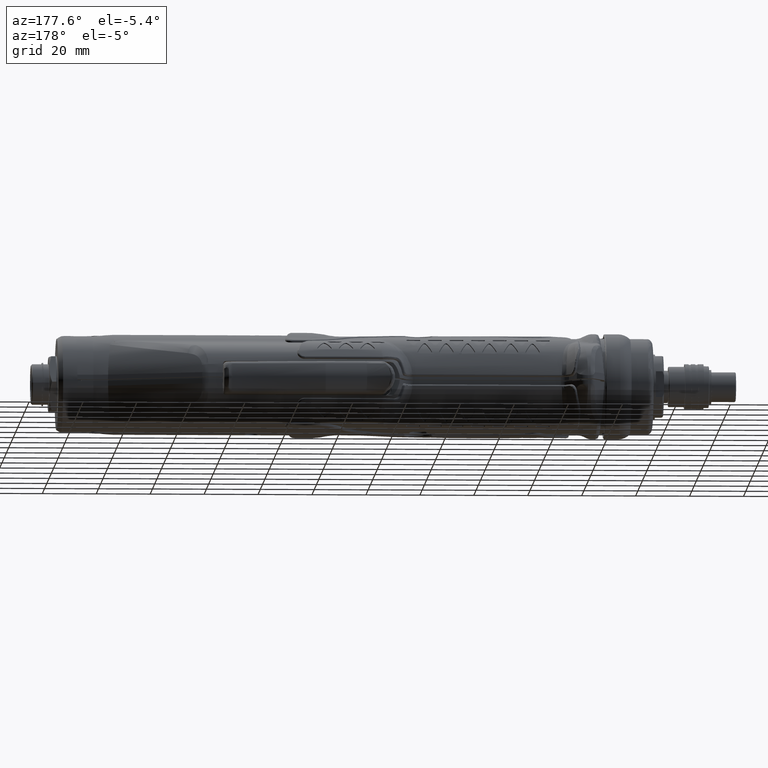
[diagram: clean part render]
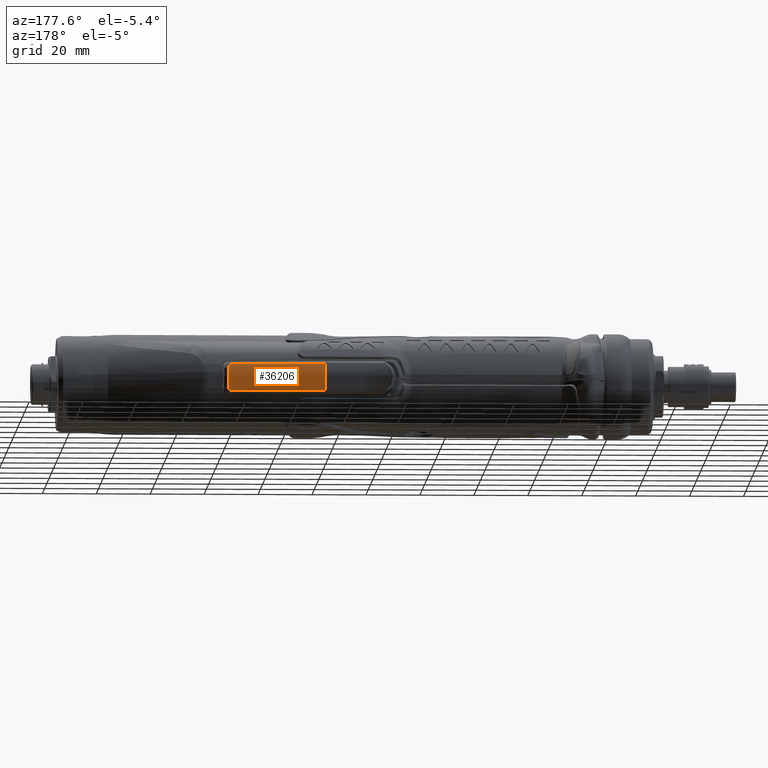
[diagram: same view with one face highlighted and labeled with its STEP entity id]
A machine part, auxiliary view. The second image highlights one B-rep face of the part: STEP entity #36206.
In plain terms, the highlighted face is a freeform B-spline surface patch.
Its self-contained STEP definition (entity closure, byte-faithful):
#151=(
BOUNDED_SURFACE()
B_SPLINE_SURFACE(1,2,((#54221,#54222,#54223),(#54224,#54225,#54226)),
 .UNSPECIFIED.,.F.,.F.,.F.)
B_SPLINE_SURFACE_WITH_KNOTS((2,2),(3,3),(-0.0453292621609347,3.55302366492364),
(-2.09415412057091,-1.04743853301884),.UNSPECIFIED.)
GEOMETRIC_REPRESENTATION_ITEM()
RATIONAL_B_SPLINE_SURFACE(((1.,0.866145869548388,1.),(1.,0.866145869548388,
1.)))
REPRESENTATION_ITEM('')
SURFACE()
);
#1243=LINE('',#54030,#3157);
#1245=LINE('',#54194,#3159);
#3157=VECTOR('',#42515,10.);
#3159=VECTOR('',#42523,10.);
#4963=ELLIPSE('',#38642,10.,9.98725868867346);
#6462=FACE_OUTER_BOUND('',#8752,.T.);
#8752=EDGE_LOOP('',(#24645,#24646,#24647,#24648,#24649,#24650,#24651,#24652));
#12206=B_SPLINE_CURVE_WITH_KNOTS('',3,(#51195,#51196,#51197,#51198,#51199,
#51200,#51201,#51202,#51203,#51204,#51205,#51206,#51207,#51208,#51209,#51210,
#51211,#51212,#51213,#51214,#51215,#51216,#51217,#51218,#51219,#51220,#51221,
#51222,#51223,#51224,#51225,#51226,#51227,#51228,#51229,#51230,#51231,#51232,
#51233,#51234,#51235,#51236,#51237,#51238,#51239,#51240,#51241,#51242,#51243),
 .UNSPECIFIED.,.F.,.F.,(4,3,3,3,3,3,3,3,3,3,3,3,3,3,3,3,4),(0.499999999999998,
0.562499999999998,0.597236248551928,0.62881524805123,0.665690674343951,
0.702712483375849,0.750812282830627,0.786521075922885,0.818377996499074,
0.849304090389232,0.872266035620495,0.904199526715371,0.923607106702099,
0.94160622217413,0.970803111087065,0.985691755565195,1.),.UNSPECIFIED.);
#12217=B_SPLINE_CURVE_WITH_KNOTS('',3,(#51940,#51941,#51942,#51943,#51944,
#51945,#51946,#51947,#51948,#51949,#51950,#51951,#51952,#51953,#51954,#51955,
#51956,#51957,#51958,#51959,#51960,#51961,#51962,#51963,#51964,#51965,#51966,
#51967,#51968,#51969,#51970,#51971,#51972,#51973,#51974,#51975,#51976,#51977,
#51978,#51979,#51980,#51981,#51982,#51983,#51984,#51985,#51986,#51987,#51988,
#51989,#51990,#51991),.UNSPECIFIED.,.F.,.F.,(4,3,3,3,3,3,3,3,3,3,3,3,3,
3,3,3,3,4),(0.500000000000004,0.550578422519174,0.588145168306505,0.6202965514392,
0.651104091523619,0.68506737455082,0.726100845386711,0.767671418164394,
0.801767239120379,0.832747018876416,0.862229567089636,0.883613442341954,
0.909695202025383,0.928743865505182,0.945339604914059,0.97266980245703,
0.987249744485877,1.),.UNSPECIFIED.);
#12290=B_SPLINE_CURVE_WITH_KNOTS('',3,(#53976,#53977,#53978,#53979,#53980,
#53981,#53982,#53983,#53984,#53985,#53986,#53987,#53988,#53989,#53990,#53991,
#53992,#53993,#53994,#53995,#53996,#53997,#53998,#53999,#54000,#54001,#54002,
#54003,#54004,#54005,#54006,#54007,#54008,#54009,#54010,#54011,#54012,#54013,
#54014,#54015,#54016,#54017,#54018,#54019,#54020,#54021,#54022,#54023,#54024),
 .UNSPECIFIED.,.F.,.F.,(4,3,3,3,3,3,3,3,3,3,3,3,3,3,3,3,4),(0.,0.0229135858401004,
0.0470739051573818,0.0730220266274505,0.102340045201647,0.145580390825562,
0.175972375357903,0.202512213665035,0.234728999624119,0.26367958225275,
0.295980876332555,0.341125040062068,0.380843780046552,0.412249464842345,
0.450273364834418,0.483852267458528,0.500000000000004),.UNSPECIFIED.);
#12291=B_SPLINE_CURVE_WITH_KNOTS('',3,(#54108,#54109,#54110,#54111,#54112,
#54113,#54114,#54115,#54116,#54117,#54118,#54119,#54120,#54121,#54122,#54123,
#54124,#54125,#54126,#54127,#54128,#54129,#54130,#54131,#54132,#54133,#54134,
#54135,#54136,#54137,#54138,#54139,#54140,#54141,#54142,#54143,#54144,#54145,
#54146,#54147,#54148,#54149,#54150,#54151,#54152,#54153,#54154,#54155,#54156),
 .UNSPECIFIED.,.F.,.F.,(4,3,3,3,3,3,3,3,3,3,3,3,3,3,3,3,4),(0.,0.0228230527923689,
0.0469022443340675,0.0727902384870115,0.102128654125631,0.145884587921874,
0.175727214059688,0.202263047992187,0.232651154670007,0.261566167012325,
0.293878001066031,0.339620698440464,0.376926095446381,0.408843166927783,
0.445349367525567,0.479245226609468,0.499999999999998),.UNSPECIFIED.);
#12293=B_SPLINE_CURVE_WITH_KNOTS('',3,(#54187,#54188,#54189,#54190,#54191),
 .UNSPECIFIED.,.F.,.F.,(4,1,4),(1.13882274706744,1.48556004070079,1.7456130109258),
 .UNSPECIFIED.);
#14290=VERTEX_POINT('',#51187);
#14291=VERTEX_POINT('',#51194);
#14302=VERTEX_POINT('',#51932);
#14303=VERTEX_POINT('',#51939);
#14541=VERTEX_POINT('',#53974);
#14542=VERTEX_POINT('',#54029);
#14544=VERTEX_POINT('',#54106);
#14545=VERTEX_POINT('',#54193);
#17947=EDGE_CURVE('',#14290,#14291,#12206,.T.);
#17963=EDGE_CURVE('',#14302,#14303,#12217,.T.);
#18360=EDGE_CURVE('',#14541,#14302,#12290,.T.);
#18363=EDGE_CURVE('',#14542,#14541,#1243,.T.);
#18367=EDGE_CURVE('',#14544,#14290,#12291,.T.);
#18369=EDGE_CURVE('',#14303,#14544,#12293,.T.);
#18370=EDGE_CURVE('',#14291,#14545,#1245,.T.);
#18376=EDGE_CURVE('',#14545,#14542,#4963,.T.);
#24645=ORIENTED_EDGE('',*,*,#18363,.F.);
#24646=ORIENTED_EDGE('',*,*,#18376,.F.);
#24647=ORIENTED_EDGE('',*,*,#18370,.F.);
#24648=ORIENTED_EDGE('',*,*,#17947,.F.);
#24649=ORIENTED_EDGE('',*,*,#18367,.F.);
#24650=ORIENTED_EDGE('',*,*,#18369,.F.);
#24651=ORIENTED_EDGE('',*,*,#17963,.F.);
#24652=ORIENTED_EDGE('',*,*,#18360,.F.);
#36206=ADVANCED_FACE('',(#6462),#151,.F.);
#38642=AXIS2_PLACEMENT_3D('',#54209,#42536,#42537);
#42515=DIRECTION('',(0.996194698091746,-0.0871557427476574,-8.0338259182135E-16));
#42523=DIRECTION('',(-0.996194698091746,0.0871557427476574,8.0338259182135E-16));
#42536=DIRECTION('center_axis',(-0.999048221581858,0.0436193873653353,8.99876836833657E-16));
#42537=DIRECTION('ref_axis',(2.0225968165821E-15,2.56948798102682E-14,1.));
#51187=CARTESIAN_POINT('',(139.331701400842,31.6792771501226,4.66314926494087));
#51194=CARTESIAN_POINT('',(138.271916093483,31.5869741274377,4.99791289104008));
#51195=CARTESIAN_POINT('Ctrl Pts',(139.331701400842,31.6792771501226,4.66314926494086));
#51196=CARTESIAN_POINT('Ctrl Pts',(139.294661660536,31.6652733373255,4.69581072925666));
#51197=CARTESIAN_POINT('Ctrl Pts',(139.255333460711,31.6522506590948,4.72655193826424));
#51198=CARTESIAN_POINT('Ctrl Pts',(139.214381586238,31.6404891599998,4.75489608113689));
#51199=CARTESIAN_POINT('Ctrl Pts',(139.191621354392,31.6339523543053,4.77064918820595));
#51200=CARTESIAN_POINT('Ctrl Pts',(139.168361924056,31.6278057735137,4.78566093962575));
#51201=CARTESIAN_POINT('Ctrl Pts',(139.144703605289,31.6220885706643,4.79987081353572));
#51202=CARTESIAN_POINT('Ctrl Pts',(139.12319563976,31.6168910161371,4.81278912278888));
#51203=CARTESIAN_POINT('Ctrl Pts',(139.101358650858,31.6120486180569,4.82504420636991));
#51204=CARTESIAN_POINT('Ctrl Pts',(139.079241011834,31.6075771779132,4.83661928073078));
#51205=CARTESIAN_POINT('Ctrl Pts',(139.053413804497,31.6023557882536,4.85013572546286));
#51206=CARTESIAN_POINT('Ctrl Pts',(139.027198762222,31.5976396450295,4.86272703479539));
#51207=CARTESIAN_POINT('Ctrl Pts',(139.000635536324,31.593427675005,4.87441635569249));
#51208=CARTESIAN_POINT('Ctrl Pts',(138.973966863571,31.5891989849105,4.8861520791667));
#51209=CARTESIAN_POINT('Ctrl Pts',(138.946947789885,31.5854783192352,4.89697879475344));
#51210=CARTESIAN_POINT('Ctrl Pts',(138.919685402683,31.5822630094449,4.90690793816439));
#51211=CARTESIAN_POINT('Ctrl Pts',(138.88426532486,31.578085586457,4.9198081669569));
#51212=CARTESIAN_POINT('Ctrl Pts',(138.848438155038,31.5747626096213,4.9311906269056));
#51213=CARTESIAN_POINT('Ctrl Pts',(138.812517905721,31.5722746020576,4.94108220584592));
#51214=CARTESIAN_POINT('Ctrl Pts',(138.785851084545,31.5704275310031,4.94842561163429));
#51215=CARTESIAN_POINT('Ctrl Pts',(138.759135774116,31.569040468553,4.95494700031518));
#51216=CARTESIAN_POINT('Ctrl Pts',(138.732488465823,31.5680939973292,4.96067517233105));
#51217=CARTESIAN_POINT('Ctrl Pts',(138.70871557656,31.5672496210288,4.9657854520452));
#51218=CARTESIAN_POINT('Ctrl Pts',(138.68499766119,31.5667559145139,4.97026423372756));
#51219=CARTESIAN_POINT('Ctrl Pts',(138.661387152249,31.5665892987214,4.97415123402987));
#51220=CARTESIAN_POINT('Ctrl Pts',(138.638466518267,31.5664275512723,4.97792466015286));
#51221=CARTESIAN_POINT('Ctrl Pts',(138.615647995909,31.5665741545056,4.98114006646457));
#51222=CARTESIAN_POINT('Ctrl Pts',(138.592936787086,31.5669968896758,4.98385679072856));
#51223=CARTESIAN_POINT('Ctrl Pts',(138.576074213527,31.5673107612517,4.98587389880498));
#51224=CARTESIAN_POINT('Ctrl Pts',(138.559266234253,31.5677766882565,4.98761703936838));
#51225=CARTESIAN_POINT('Ctrl Pts',(138.542508872684,31.5683769003719,4.98911874204792));
#51226=CARTESIAN_POINT('Ctrl Pts',(138.519204180898,31.569211623565,4.99120718049079));
#51227=CARTESIAN_POINT('Ctrl Pts',(138.496003649408,31.5703058576562,4.99282810390362));
#51228=CARTESIAN_POINT('Ctrl Pts',(138.473025961272,31.5716014657165,4.99406596123555));
#51229=CARTESIAN_POINT('Ctrl Pts',(138.459061270751,31.5723888715465,4.99481826905902));
#51230=CARTESIAN_POINT('Ctrl Pts',(138.445181175232,31.5732504654769,4.99542904502838));
#51231=CARTESIAN_POINT('Ctrl Pts',(138.431382405865,31.5741736284808,4.99592082899763));
#51232=CARTESIAN_POINT('Ctrl Pts',(138.418585053317,31.5750297948611,4.99637692277417));
#51233=CARTESIAN_POINT('Ctrl Pts',(138.405851381819,31.5759393718601,4.99673083001306));
#51234=CARTESIAN_POINT('Ctrl Pts',(138.393159141832,31.5768918772216,4.99700414349025));
#51235=CARTESIAN_POINT('Ctrl Pts',(138.372570690052,31.5784369638829,4.99744749323396));
#51236=CARTESIAN_POINT('Ctrl Pts',(138.352098286919,31.5800947160063,4.99767822369949));
#51237=CARTESIAN_POINT('Ctrl Pts',(138.331881257259,31.5817961501479,4.99779472083849));
#51238=CARTESIAN_POINT('Ctrl Pts',(138.321571796963,31.5826637784802,4.99785412732151));
#51239=CARTESIAN_POINT('Ctrl Pts',(138.311330408882,31.5835425314552,4.99788397850242));
#51240=CARTESIAN_POINT('Ctrl Pts',(138.301149430803,31.5844247616374,4.99789866852017));
#51241=CARTESIAN_POINT('Ctrl Pts',(138.291365335067,31.5852726000765,4.99791278588089));
#51242=CARTESIAN_POINT('Ctrl Pts',(138.281638294109,31.5861235450984,4.99791289104008));
#51243=CARTESIAN_POINT('Ctrl Pts',(138.271916093483,31.5869741274377,4.99791289104008));
#51932=CARTESIAN_POINT('',(139.331092485294,31.6790383609999,-4.66370239969428));
#51939=CARTESIAN_POINT('',(139.716338370412,32.0903496253099,-3.7002771195706));
#51940=CARTESIAN_POINT('Ctrl Pts',(139.331092485294,31.6790383609999,-4.66370239969427));
#51941=CARTESIAN_POINT('Ctrl Pts',(139.360993270502,31.6904016935678,-4.63722908673854));
#51942=CARTESIAN_POINT('Ctrl Pts',(139.389557374279,31.7024698688071,-4.6093526494721));
#51943=CARTESIAN_POINT('Ctrl Pts',(139.416481375014,31.7150731618107,-4.58036732399288));
#51944=CARTESIAN_POINT('Ctrl Pts',(139.436478975588,31.7244341636128,-4.55883868985195));
#51945=CARTESIAN_POINT('Ctrl Pts',(139.455568805593,31.7340891923759,-4.53670149373038));
#51946=CARTESIAN_POINT('Ctrl Pts',(139.473640743804,31.7439726834513,-4.51407483014807));
#51947=CARTESIAN_POINT('Ctrl Pts',(139.489107556199,31.752431438704,-4.49470987013882));
#51948=CARTESIAN_POINT('Ctrl Pts',(139.503828225555,31.7610573587077,-4.47498705054295));
#51949=CARTESIAN_POINT('Ctrl Pts',(139.517762504124,31.7698189188571,-4.45496137467714));
#51950=CARTESIAN_POINT('Ctrl Pts',(139.531114366585,31.7782142688919,-4.4357727192651));
#51951=CARTESIAN_POINT('Ctrl Pts',(139.543743612897,31.7867340176664,-4.41630654421164));
#51952=CARTESIAN_POINT('Ctrl Pts',(139.55565191545,31.7953623297121,-4.39658296369581));
#51953=CARTESIAN_POINT('Ctrl Pts',(139.568780034373,31.8048744752209,-4.37483901576835));
#51954=CARTESIAN_POINT('Ctrl Pts',(139.581036915004,31.814521487087,-4.35277522943172));
#51955=CARTESIAN_POINT('Ctrl Pts',(139.592435580573,31.8242728520607,-4.33043761172219));
#51956=CARTESIAN_POINT('Ctrl Pts',(139.606207123531,31.8360541733758,-4.30344993847242));
#51957=CARTESIAN_POINT('Ctrl Pts',(139.618724797183,31.8479871347105,-4.27606341485786));
#51958=CARTESIAN_POINT('Ctrl Pts',(139.629999207681,31.859988769391,-4.24843204987723));
#51959=CARTESIAN_POINT('Ctrl Pts',(139.641421193016,31.8721474978088,-4.22043900796596));
#51960=CARTESIAN_POINT('Ctrl Pts',(139.651565075273,31.8843748500463,-4.19219877021255));
#51961=CARTESIAN_POINT('Ctrl Pts',(139.660457097756,31.8965793982319,-4.16389640463316));
#51962=CARTESIAN_POINT('Ctrl Pts',(139.667750256986,31.9065894621299,-4.14068305141364));
#51963=CARTESIAN_POINT('Ctrl Pts',(139.674201044534,31.9165837069715,-4.11742945458938));
#51964=CARTESIAN_POINT('Ctrl Pts',(139.679846371837,31.9265217957352,-4.09421990740678));
#51965=CARTESIAN_POINT('Ctrl Pts',(139.684975768683,31.9355516355357,-4.07313149716195));
#51966=CARTESIAN_POINT('Ctrl Pts',(139.689440040927,31.9445349439407,-4.05208013648955));
#51967=CARTESIAN_POINT('Ctrl Pts',(139.69328986331,31.9534544746531,-4.0310994064053));
#51968=CARTESIAN_POINT('Ctrl Pts',(139.696953626413,31.9619429305537,-4.01113266063988));
#51969=CARTESIAN_POINT('Ctrl Pts',(139.700060709812,31.9703734987923,-3.99123044208684));
#51970=CARTESIAN_POINT('Ctrl Pts',(139.702679208206,31.9787457738121,-3.97138479148261));
#51971=CARTESIAN_POINT('Ctrl Pts',(139.704578421347,31.9848182368606,-3.95699061789379));
#51972=CARTESIAN_POINT('Ctrl Pts',(139.706222055693,31.9908626579178,-3.942619775634));
#51973=CARTESIAN_POINT('Ctrl Pts',(139.707640506998,31.9968718994283,-3.92828436571011));
#51974=CARTESIAN_POINT('Ctrl Pts',(139.709370581908,32.0042013283136,-3.91079956876911));
#51975=CARTESIAN_POINT('Ctrl Pts',(139.710764967133,32.0114755014921,-3.89337421709439));
#51976=CARTESIAN_POINT('Ctrl Pts',(139.711878431825,32.0186659615435,-3.87606931066447));
#51977=CARTESIAN_POINT('Ctrl Pts',(139.712691644372,32.02391747277,-3.86343077158069));
#51978=CARTESIAN_POINT('Ctrl Pts',(139.713354937403,32.0291236963537,-3.85085820254876));
#51979=CARTESIAN_POINT('Ctrl Pts',(139.713893579181,32.0342868689424,-3.83834348743199));
#51980=CARTESIAN_POINT('Ctrl Pts',(139.714362859275,32.0387851722956,-3.82744031036267));
#51981=CARTESIAN_POINT('Ctrl Pts',(139.714737714935,32.0432536486539,-3.81657417154716));
#51982=CARTESIAN_POINT('Ctrl Pts',(139.715037860537,32.0476956407365,-3.80573402080836));
#51983=CARTESIAN_POINT('Ctrl Pts',(139.715532146353,32.0550108026652,-3.78788224248215));
#51984=CARTESIAN_POINT('Ctrl Pts',(139.715823397007,32.0622504257353,-3.77010934375464));
#51985=CARTESIAN_POINT('Ctrl Pts',(139.7160070293,32.0693634625622,-3.75252743988416));
#51986=CARTESIAN_POINT('Ctrl Pts',(139.716104992302,32.0731580807468,-3.74314795630065));
#51987=CARTESIAN_POINT('Ctrl Pts',(139.716172479671,32.0769162649766,-3.73382400126588));
#51988=CARTESIAN_POINT('Ctrl Pts',(139.716224880251,32.0806409512288,-3.72454644595887));
#51989=CARTESIAN_POINT('Ctrl Pts',(139.716270704904,32.0838982139347,-3.71643316262229));
#51990=CARTESIAN_POINT('Ctrl Pts',(139.716305005214,32.0871297539829,-3.70835569317362));
#51991=CARTESIAN_POINT('Ctrl Pts',(139.716338370412,32.0903496253099,-3.7002771195706));
#53974=CARTESIAN_POINT('',(138.271916086003,31.5869741280921,-4.99791289104049));
#53976=CARTESIAN_POINT('Ctrl Pts',(138.271916086003,31.5869741280921,-4.99791289104049));
#53977=CARTESIAN_POINT('Ctrl Pts',(138.287485465086,31.5856119839242,-4.99791289104049));
#53978=CARTESIAN_POINT('Ctrl Pts',(138.303059366059,31.5842498840123,-4.99791213043053));
#53979=CARTESIAN_POINT('Ctrl Pts',(138.318733298502,31.5829134095212,-4.99785188680089));
#53980=CARTESIAN_POINT('Ctrl Pts',(138.335260053216,31.5815042171455,-4.99778836530151));
#53981=CARTESIAN_POINT('Ctrl Pts',(138.351897694769,31.5801235435642,-4.99765871523703));
#53982=CARTESIAN_POINT('Ctrl Pts',(138.368700447083,31.5788005394268,-4.99740425110705));
#53983=CARTESIAN_POINT('Ctrl Pts',(138.386746560313,31.5773796363496,-4.99713095727895));
#53984=CARTESIAN_POINT('Ctrl Pts',(138.4049826554,31.5760253028284,-4.99671368943448));
#53985=CARTESIAN_POINT('Ctrl Pts',(138.423417029831,31.5747720802868,-4.99609122315128));
#53986=CARTESIAN_POINT('Ctrl Pts',(138.44424548682,31.5733561010301,-4.99538791682239));
#53987=CARTESIAN_POINT('Ctrl Pts',(138.465326331101,31.5720693193969,-4.99442258462783));
#53988=CARTESIAN_POINT('Ctrl Pts',(138.48660769971,31.5709582295027,-4.99312185650942));
#53989=CARTESIAN_POINT('Ctrl Pts',(138.517995009589,31.5693195133348,-4.99120344809924));
#53990=CARTESIAN_POINT('Ctrl Pts',(138.549814997436,31.5680642254963,-4.98855409004909));
#53991=CARTESIAN_POINT('Ctrl Pts',(138.581786896897,31.5673231824055,-4.98498412666534));
#53992=CARTESIAN_POINT('Ctrl Pts',(138.604258721761,31.5668023315698,-4.98247493599228));
#53993=CARTESIAN_POINT('Ctrl Pts',(138.626801928368,31.566535093147,-4.97951218013918));
#53994=CARTESIAN_POINT('Ctrl Pts',(138.649337725153,31.5665587699045,-4.9760395525485));
#53995=CARTESIAN_POINT('Ctrl Pts',(138.669017137734,31.5665794456625,-4.97300707618424));
#53996=CARTESIAN_POINT('Ctrl Pts',(138.688690067291,31.566821893632,-4.96958602601586));
#53997=CARTESIAN_POINT('Ctrl Pts',(138.708342221757,31.5673059640775,-4.96574064045445));
#53998=CARTESIAN_POINT('Ctrl Pts',(138.732198028516,31.5678935785818,-4.96107271587523));
#53999=CARTESIAN_POINT('Ctrl Pts',(138.75602834977,31.5688378158453,-4.95577781485688));
#54000=CARTESIAN_POINT('Ctrl Pts',(138.779880412955,31.5701628786083,-4.94979802812657));
#54001=CARTESIAN_POINT('Ctrl Pts',(138.801314305429,31.5713536038116,-4.94442448434547));
#54002=CARTESIAN_POINT('Ctrl Pts',(138.822765682919,31.5728515397585,-4.9384983847361));
#54003=CARTESIAN_POINT('Ctrl Pts',(138.844215341864,31.5746640776421,-4.93200171747463));
#54004=CARTESIAN_POINT('Ctrl Pts',(138.868147562863,31.5766863968458,-4.92475313244808));
#54005=CARTESIAN_POINT('Ctrl Pts',(138.892076980102,31.5791003260013,-4.91679441870092));
#54006=CARTESIAN_POINT('Ctrl Pts',(138.915919006537,31.5819052146779,-4.90812628476727));
#54007=CARTESIAN_POINT('Ctrl Pts',(138.94924053051,31.5858253162486,-4.8960117342925));
#54008=CARTESIAN_POINT('Ctrl Pts',(138.98238930904,31.5905093514836,-4.88251144103634));
#54009=CARTESIAN_POINT('Ctrl Pts',(139.01503891843,31.5959315334573,-4.86767848324179));
#54010=CARTESIAN_POINT('Ctrl Pts',(139.043764699103,31.6007020778239,-4.85462814970649));
#54011=CARTESIAN_POINT('Ctrl Pts',(139.072097765662,31.6060430260755,-4.84054880854786));
#54012=CARTESIAN_POINT('Ctrl Pts',(139.099832408906,31.6119300932655,-4.82548288655929));
#54013=CARTESIAN_POINT('Ctrl Pts',(139.12176224515,31.6165850087187,-4.8135702328015));
#54014=CARTESIAN_POINT('Ctrl Pts',(139.143317355932,31.6215811494555,-4.80104121011021));
#54015=CARTESIAN_POINT('Ctrl Pts',(139.16443856658,31.6269079630791,-4.78790627804425));
#54016=CARTESIAN_POINT('Ctrl Pts',(139.190010713999,31.6333573122914,-4.77200338191172));
#54017=CARTESIAN_POINT('Ctrl Pts',(139.214949393647,31.6402927406139,-4.75520954532958));
#54018=CARTESIAN_POINT('Ctrl Pts',(139.239243881446,31.6476968170825,-4.73752309275771));
#54019=CARTESIAN_POINT('Ctrl Pts',(139.260698341412,31.6542353563383,-4.72190418810036));
#54020=CARTESIAN_POINT('Ctrl Pts',(139.281651385263,31.6611389642332,-4.70558951567408));
#54021=CARTESIAN_POINT('Ctrl Pts',(139.302052830171,31.6683747330429,-4.68862276016108));
#54022=CARTESIAN_POINT('Ctrl Pts',(139.311863665251,31.6718543363157,-4.68046363021012));
#54023=CARTESIAN_POINT('Ctrl Pts',(139.321546321964,31.6754104887582,-4.67215430380286));
#54024=CARTESIAN_POINT('Ctrl Pts',(139.331092485294,31.6790383609999,-4.66370239969427));
#54029=CARTESIAN_POINT('',(103.895657242788,34.5945070713062,-4.99791289104046));
#54030=CARTESIAN_POINT('',(104.271547548547,34.561620930823,-4.99791289104046));
#54106=CARTESIAN_POINT('',(139.71633837029,32.0903496135125,3.70027714916961));
#54108=CARTESIAN_POINT('Ctrl Pts',(139.71633837029,32.0903496135125,3.70027714916961));
#54109=CARTESIAN_POINT('Ctrl Pts',(139.716278646335,32.0845860197717,3.71473785616478));
#54110=CARTESIAN_POINT('Ctrl Pts',(139.716215207621,32.0787873883577,3.72918939114318));
#54111=CARTESIAN_POINT('Ctrl Pts',(139.716083272446,32.0729233474434,3.74371951913969));
#54112=CARTESIAN_POINT('Ctrl Pts',(139.715944075801,32.0667365605281,3.75904935859353));
#54113=CARTESIAN_POINT('Ctrl Pts',(139.715728628013,32.0604770209813,3.77446634776051));
#54114=CARTESIAN_POINT('Ctrl Pts',(139.71537135452,32.0541284391837,3.79001910431181));
#54115=CARTESIAN_POINT('Ctrl Pts',(139.714987243031,32.0473029588443,3.8067401669756));
#54116=CARTESIAN_POINT('Ctrl Pts',(139.71443917681,32.0403746570859,3.82361768692841));
#54117=CARTESIAN_POINT('Ctrl Pts',(139.713657780815,32.0333440043895,3.84065690524936));
#54118=CARTESIAN_POINT('Ctrl Pts',(139.71277223826,32.0253762873929,3.85996715641459));
#54119=CARTESIAN_POINT('Ctrl Pts',(139.711586916941,32.0172772984081,3.87948433172741));
#54120=CARTESIAN_POINT('Ctrl Pts',(139.710017126628,32.0090715900344,3.89915661011403));
#54121=CARTESIAN_POINT('Ctrl Pts',(139.707675908142,31.9968334229577,3.9284962623062));
#54122=CARTESIAN_POINT('Ctrl Pts',(139.704477688031,31.9843589797052,3.95817690367969));
#54123=CARTESIAN_POINT('Ctrl Pts',(139.70019513696,31.9717776386868,3.98792266601877));
#54124=CARTESIAN_POINT('Ctrl Pts',(139.697274331496,31.9631968537794,4.00821000964634));
#54125=CARTESIAN_POINT('Ctrl Pts',(139.693850533077,31.9545678172459,4.02852467836899));
#54126=CARTESIAN_POINT('Ctrl Pts',(139.68986238056,31.9459249884623,4.04879922787746));
#54127=CARTESIAN_POINT('Ctrl Pts',(139.686316145975,31.9382398514958,4.06682720156611));
#54128=CARTESIAN_POINT('Ctrl Pts',(139.682323952859,31.9305442597811,4.08482265104367));
#54129=CARTESIAN_POINT('Ctrl Pts',(139.677845137052,31.9228466519884,4.10277532111881));
#54130=CARTESIAN_POINT('Ctrl Pts',(139.672716120459,31.9140315634042,4.12333422478029));
#54131=CARTESIAN_POINT('Ctrl Pts',(139.666947152914,31.9052115971474,4.14384262157103));
#54132=CARTESIAN_POINT('Ctrl Pts',(139.660484821424,31.8963749126045,4.16433687555821));
#54133=CARTESIAN_POINT('Ctrl Pts',(139.654335758017,31.8879665953199,4.18383764976796));
#54134=CARTESIAN_POINT('Ctrl Pts',(139.647559337021,31.8795430665785,4.20332540572415));
#54135=CARTESIAN_POINT('Ctrl Pts',(139.640136750316,31.8711141402899,4.22278213634144));
#54136=CARTESIAN_POINT('Ctrl Pts',(139.631842187373,31.8616950169548,4.24452456700308));
#54137=CARTESIAN_POINT('Ctrl Pts',(139.622740891416,31.8522692894433,4.26622757032847));
#54138=CARTESIAN_POINT('Ctrl Pts',(139.612836481339,31.8428741730033,4.28781378072382));
#54139=CARTESIAN_POINT('Ctrl Pts',(139.598815165431,31.8295738457178,4.31837259976003));
#54140=CARTESIAN_POINT('Ctrl Pts',(139.583184185414,31.8163352041137,4.3486949862945));
#54141=CARTESIAN_POINT('Ctrl Pts',(139.566015907749,31.8033100157026,4.37847701629445));
#54142=CARTESIAN_POINT('Ctrl Pts',(139.552014341357,31.7926873403326,4.40276571190188));
#54143=CARTESIAN_POINT('Ctrl Pts',(139.53699286664,31.7822089340475,4.42669055916602));
#54144=CARTESIAN_POINT('Ctrl Pts',(139.520996886209,31.771955518932,4.45010332156578));
#54145=CARTESIAN_POINT('Ctrl Pts',(139.507311336884,31.7631830889503,4.47013438599786));
#54146=CARTESIAN_POINT('Ctrl Pts',(139.492913127822,31.7545759778642,4.48978967228693));
#54147=CARTESIAN_POINT('Ctrl Pts',(139.47781863825,31.746167850811,4.50901746642959));
#54148=CARTESIAN_POINT('Ctrl Pts',(139.460553819183,31.7365507788615,4.5310098885863));
#54149=CARTESIAN_POINT('Ctrl Pts',(139.442375020793,31.7271929880138,4.55244600949223));
#54150=CARTESIAN_POINT('Ctrl Pts',(139.42328760028,31.718109621878,4.57332298623936));
#54151=CARTESIAN_POINT('Ctrl Pts',(139.405565007806,31.7096757532883,4.59270717441372));
#54152=CARTESIAN_POINT('Ctrl Pts',(139.387059243377,31.701477869698,4.61161025047481));
#54153=CARTESIAN_POINT('Ctrl Pts',(139.367826223832,31.6935440465005,4.62999076545552));
#54154=CARTESIAN_POINT('Ctrl Pts',(139.356049653682,31.6886860872384,4.6412453385372));
#54155=CARTESIAN_POINT('Ctrl Pts',(139.344001423506,31.683927485502,4.65230316429322));
#54156=CARTESIAN_POINT('Ctrl Pts',(139.331701400842,31.6792771501226,4.66314926494086));
#54187=CARTESIAN_POINT('Ctrl Pts',(139.716338370412,32.0903496253099,-3.7002771195706));
#54188=CARTESIAN_POINT('Ctrl Pts',(139.721878109236,32.6249559514912,-2.35896372031467));
#54189=CARTESIAN_POINT('Ctrl Pts',(139.72619499282,33.0427094461362,0.193290756940509));
#54190=CARTESIAN_POINT('Ctrl Pts',(139.720493174441,32.491304361355,2.69429210100641));
#54191=CARTESIAN_POINT('Ctrl Pts',(139.71633837029,32.0903496135125,3.70027714916962));
#54193=CARTESIAN_POINT('',(103.895657242788,34.5945070713062,4.99791289104011));
#54194=CARTESIAN_POINT('',(104.271547548547,34.561620930823,4.99791289104011));
#54209=CARTESIAN_POINT('Origin',(103.518331097127,25.9523174957877,-1.58794305530609E-13));
#54221=CARTESIAN_POINT('Ctrl Pts',(103.819979842216,34.6011279859414,-4.99791289104048));
#54222=CARTESIAN_POINT('Ctrl Pts',(104.070772654105,37.4677029429942,-4.57588313343625E-13));
#54223=CARTESIAN_POINT('Ctrl Pts',(103.819979842216,34.6011279859414,4.99791289104011));
#54224=CARTESIAN_POINT('Ctrl Pts',(139.666580920461,31.4649567656588,-4.9979128910405));
#54225=CARTESIAN_POINT('Ctrl Pts',(139.917373732351,34.3315317227115,-4.86496854352117E-13));
#54226=CARTESIAN_POINT('Ctrl Pts',(139.666580920461,31.4649567656588,4.99791289104009));